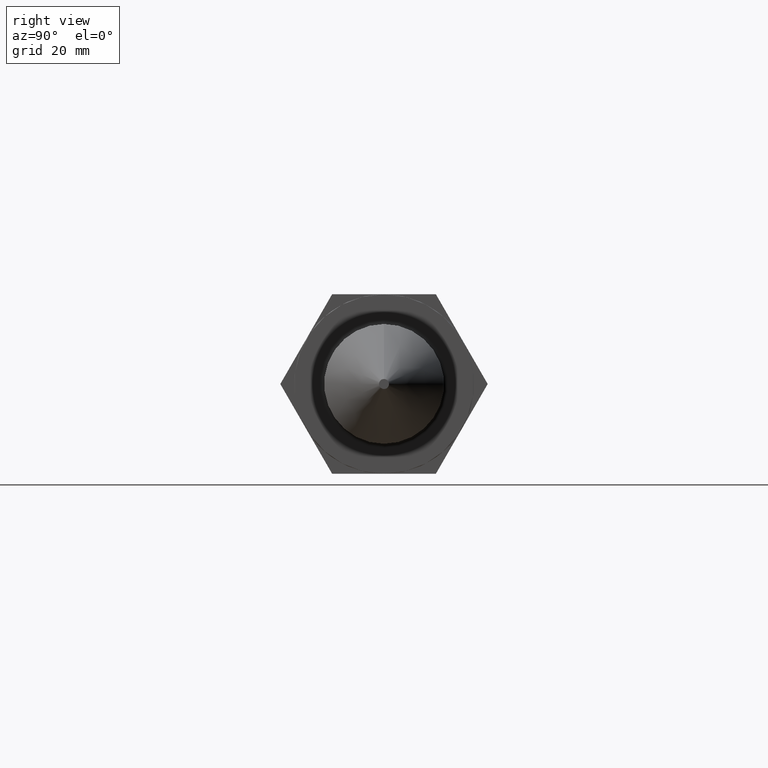
[diagram: clean part render]
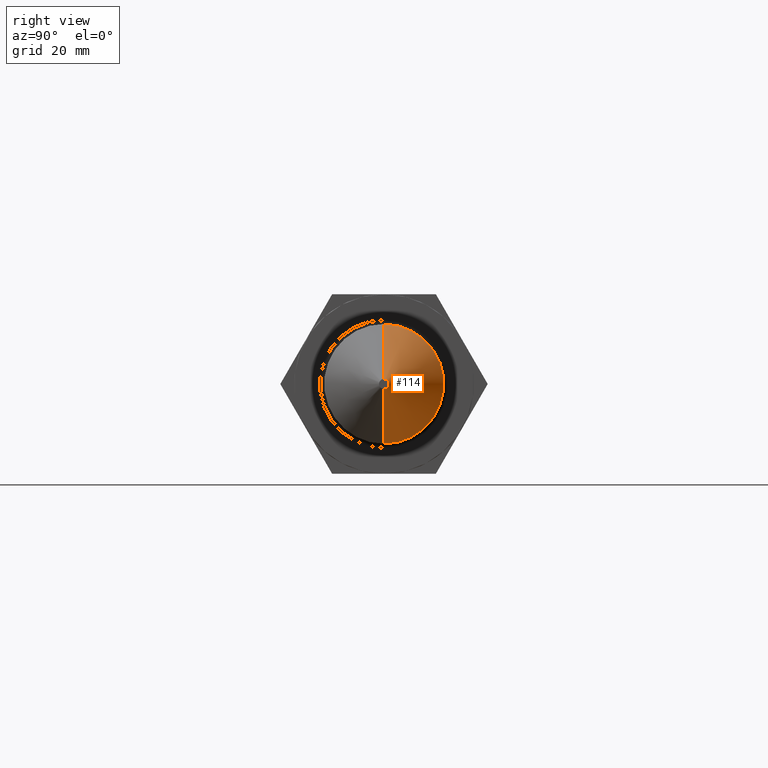
[diagram: same view with one face highlighted and labeled with its STEP entity id]
A machine part, right view. The second image highlights one B-rep face of the part: STEP entity #114.
In plain terms, the highlighted conical surface has half-angle 30 deg.
Its self-contained STEP definition (entity closure, byte-faithful):
#85 = VECTOR ( 'NONE', #696, 999.9999999999998863 ) ;
#114 = ADVANCED_FACE ( 'NONE', ( #713 ), #191, .T. ) ;
#140 = ORIENTED_EDGE ( 'NONE', *, *, #379, .F. ) ;
#189 = CIRCLE ( 'NONE', #262, 1.000000000000000000 ) ;
#190 = CARTESIAN_POINT ( 'NONE',  ( 135.9000000000000057, 0.000000000000000000, 1.000000000000000000 ) ) ;
#191 = CONICAL_SURFACE ( 'NONE', #537, 1.000000000000000000, 0.5235987755982927094 ) ;
#215 = LINE ( 'NONE', #422, #226 ) ;
#226 = VECTOR ( 'NONE', #487, 999.9999999999998863 ) ;
#262 = AXIS2_PLACEMENT_3D ( 'NONE', #668, #348, #617 ) ;
#283 = ORIENTED_EDGE ( 'NONE', *, *, #720, .T. ) ;
#304 = CARTESIAN_POINT ( 'NONE',  ( 135.9000000000000057, 7.960204194457797449E-16, -1.000000000000000000 ) ) ;
#337 = CARTESIAN_POINT ( 'NONE',  ( 116.8474411167420755, 1.469576158976823947E-15, -12.00000000000000000 ) ) ;
#348 = DIRECTION ( 'NONE',  ( -1.000000000000000000, -0.000000000000000000, -0.000000000000000000 ) ) ;
#355 = DIRECTION ( 'NONE',  ( -1.000000000000000000, -0.000000000000000000, -0.000000000000000000 ) ) ;
#363 = CARTESIAN_POINT ( 'NONE',  ( 116.8474411167420755, 0.000000000000000000, 12.00000000000000000 ) ) ;
#372 = DIRECTION ( 'NONE',  ( 0.000000000000000000, 0.000000000000000000, 1.000000000000000000 ) ) ;
#379 = EDGE_CURVE ( 'NONE', #632, #489, #683, .T. ) ;
#399 = ORIENTED_EDGE ( 'NONE', *, *, #627, .T. ) ;
#422 = CARTESIAN_POINT ( 'NONE',  ( 135.9000000000000057, 1.224646799147353207E-16, -1.000000000000000000 ) ) ;
#427 = CARTESIAN_POINT ( 'NONE',  ( 135.9000000000000057, 0.000000000000000000, 1.000000000000000000 ) ) ;
#487 = DIRECTION ( 'NONE',  ( -0.8660254037844418162, 6.123233995736700708E-17, -0.4999999999999947264 ) ) ;
#489 = VERTEX_POINT ( 'NONE', #363 ) ;
#493 = CIRCLE ( 'NONE', #879, 12.00000000000000000 ) ;
#512 = CARTESIAN_POINT ( 'NONE',  ( 135.9000000000000057, 0.000000000000000000, 0.000000000000000000 ) ) ;
#537 = AXIS2_PLACEMENT_3D ( 'NONE', #512, #785, #372 ) ;
#567 = ORIENTED_EDGE ( 'NONE', *, *, #778, .F. ) ;
#572 = VERTEX_POINT ( 'NONE', #337 ) ;
#617 = DIRECTION ( 'NONE',  ( 0.000000000000000000, 0.000000000000000000, 1.000000000000000000 ) ) ;
#626 = DIRECTION ( 'NONE',  ( 0.000000000000000000, 0.000000000000000000, 1.000000000000000000 ) ) ;
#627 = EDGE_CURVE ( 'NONE', #632, #853, #189, .T. ) ;
#632 = VERTEX_POINT ( 'NONE', #190 ) ;
#668 = CARTESIAN_POINT ( 'NONE',  ( 135.9000000000000057, 0.000000000000000000, 0.000000000000000000 ) ) ;
#683 = LINE ( 'NONE', #427, #85 ) ;
#696 = DIRECTION ( 'NONE',  ( -0.8660254037844418162, 0.000000000000000000, 0.4999999999999947264 ) ) ;
#713 = FACE_OUTER_BOUND ( 'NONE', #761, .T. ) ;
#720 = EDGE_CURVE ( 'NONE', #853, #572, #215, .T. ) ;
#761 = EDGE_LOOP ( 'NONE', ( #399, #283, #567, #140 ) ) ;
#778 = EDGE_CURVE ( 'NONE', #489, #572, #493, .T. ) ;
#785 = DIRECTION ( 'NONE',  ( -1.000000000000000000, -0.000000000000000000, -0.000000000000000000 ) ) ;
#844 = CARTESIAN_POINT ( 'NONE',  ( 116.8474411167420755, 0.000000000000000000, 0.000000000000000000 ) ) ;
#853 = VERTEX_POINT ( 'NONE', #304 ) ;
#879 = AXIS2_PLACEMENT_3D ( 'NONE', #844, #355, #626 ) ;